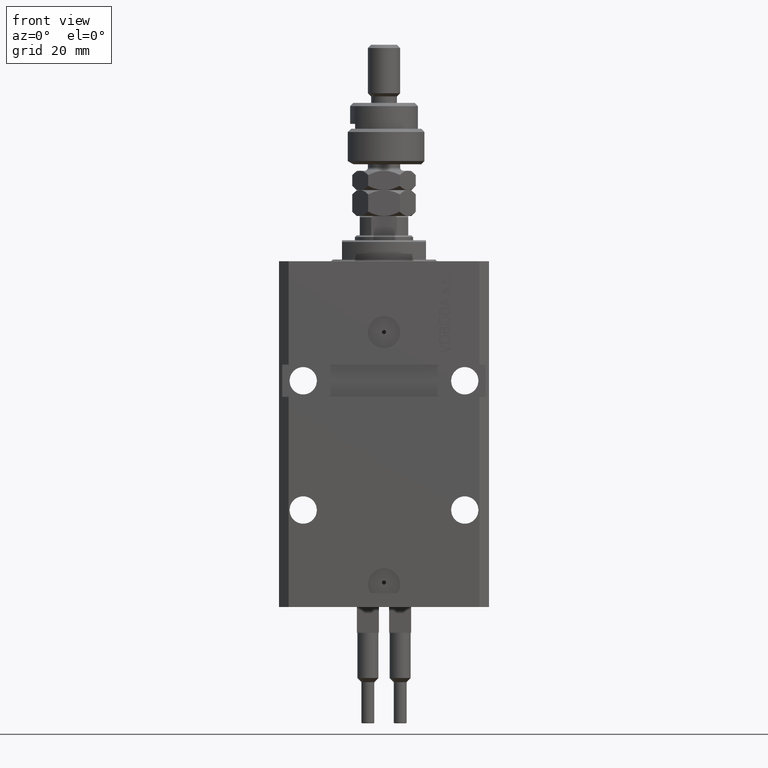
[diagram: clean part render]
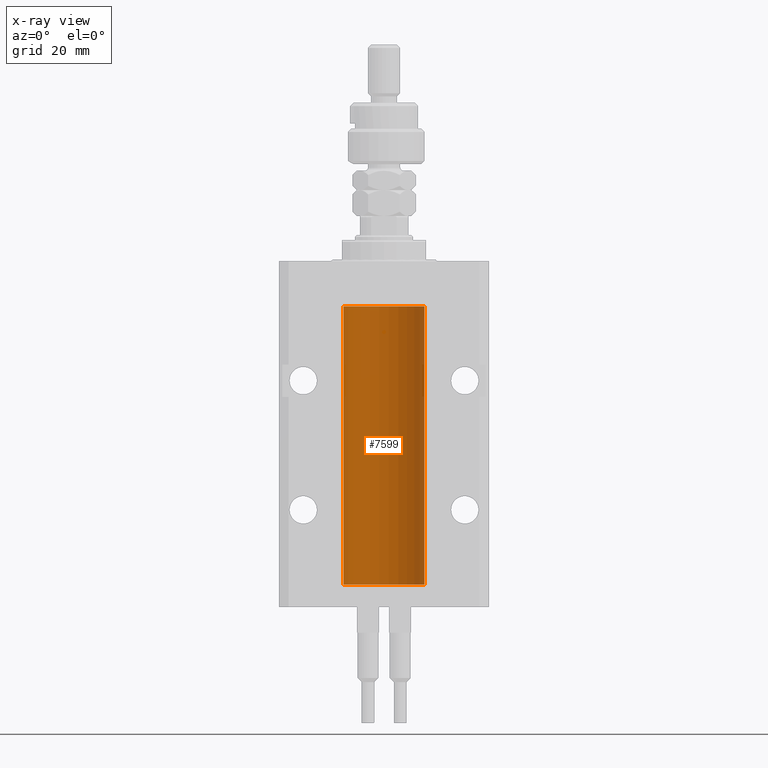
[diagram: x-ray — body ghosted, one internal face saturated and labeled with its STEP entity id]
A machine part, front view, then the same camera in x-ray: the body is ghosted and one INTERNAL B-rep face — a face not visible from any outside direction — is saturated and labeled: STEP entity #7599.
In plain terms, the highlighted cylindrical surface (partial cylindrical patch) has radius 12.5 mm, axis along (0, 0, 1).
Its self-contained STEP definition (entity closure, byte-faithful):
#908 = CARTESIAN_POINT ( 'NONE',  ( 12.48810305280568222, 0.5461368461738485003, -94.68525466142676805 ) ) ;
#1332 = CARTESIAN_POINT ( 'NONE',  ( 12.50000000000000000, 0.000000000000000000, -100.0999999999999943 ) ) ;
#1795 = VERTEX_POINT ( 'NONE', #12191 ) ;
#1808 = CARTESIAN_POINT ( 'NONE',  ( 12.49625698805480667, 0.3151108292486967666, -22.54593695688170385 ) ) ;
#1812 = VERTEX_POINT ( 'NONE', #51411 ) ;
#4069 = EDGE_CURVE ( 'NONE', #26131, #13361, #44828, .T. ) ;
#5304 = CARTESIAN_POINT ( 'NONE',  ( 12.48436522214846711, 0.6250000000078848039, -94.99999999999923261 ) ) ;
#5814 = CARTESIAN_POINT ( 'NONE',  ( 12.50000000000000000, 0.000000000000000000, -100.0999999999999943 ) ) ;
#5827 = CARTESIAN_POINT ( 'NONE',  ( 12.48520578595314845, 0.6087855079133740466, -94.83656717509346379 ) ) ;
#5999 = CARTESIAN_POINT ( 'NONE',  ( 12.50000000000000000, 0.000000000000000000, -100.0999999999999943 ) ) ;
#6095 = ORIENTED_EDGE ( 'NONE', *, *, #10388, .F. ) ;
#6205 = CARTESIAN_POINT ( 'NONE',  ( 12.49915742890631876, 0.1636982395582437522, -22.60872397847025539 ) ) ;
#6868 = CARTESIAN_POINT ( 'NONE',  ( 0.000000000000000000, 0.000000000000000000, -100.0999999999999943 ) ) ;
#6883 = ORIENTED_EDGE ( 'NONE', *, *, #37678, .T. ) ;
#7599 = ADVANCED_FACE ( 'NONE', ( #10473 ), #9456, .F. ) ;
#7913 = ORIENTED_EDGE ( 'NONE', *, *, #41680, .T. ) ;
#7996 = CARTESIAN_POINT ( 'NONE',  ( 12.49012055744648997, 0.5002956126655976332, -21.61641710202404454 ) ) ;
#8279 = CARTESIAN_POINT ( 'NONE',  ( 12.49625698805481022, 0.3151108292486944906, -95.54593695688171806 ) ) ;
#9456 = CYLINDRICAL_SURFACE ( 'NONE', #28266, 12.50000000000000000 ) ;
#9467 = ORIENTED_EDGE ( 'NONE', *, *, #35169, .T. ) ;
#10052 = CARTESIAN_POINT ( 'NONE',  ( 12.50000000000017941, 3.868073689162038701E-13, -94.37499999999640465 ) ) ;
#10336 = DIRECTION ( 'NONE',  ( 0.000000000000000000, 0.000000000000000000, 1.000000000000000000 ) ) ;
#10388 = EDGE_CURVE ( 'NONE', #29681, #26131, #11815, .T. ) ;
#10473 = FACE_OUTER_BOUND ( 'NONE', #16449, .T. ) ;
#10507 = DIRECTION ( 'NONE',  ( 0.000000000000000000, 0.000000000000000000, 1.000000000000000000 ) ) ;
#11282 = CARTESIAN_POINT ( 'NONE',  ( 12.48436522214846889, 0.6250000000078781426, -21.99999999999923261 ) ) ;
#11815 = CIRCLE ( 'NONE', #20831, 12.50000000000000000 ) ;
#12191 = CARTESIAN_POINT ( 'NONE',  ( 12.48436522214846711, 0.6250000000078848039, -94.99999999999923261 ) ) ;
#12360 = CARTESIAN_POINT ( 'NONE',  ( -12.50000000000000000, 1.530808498934191521E-15, -100.0999999999999943 ) ) ;
#13361 = VERTEX_POINT ( 'NONE', #35385 ) ;
#14259 = EDGE_CURVE ( 'NONE', #35543, #45803, #25209, .T. ) ;
#14291 = CARTESIAN_POINT ( 'NONE',  ( 12.50000000000000000, 0.000000000000000000, -100.0999999999999943 ) ) ;
#14445 = VERTEX_POINT ( 'NONE', #30648 ) ;
#14567 = AXIS2_PLACEMENT_3D ( 'NONE', #18905, #10336, #17875 ) ;
#15284 = ORIENTED_EDGE ( 'NONE', *, *, #14259, .T. ) ;
#15534 = CARTESIAN_POINT ( 'NONE',  ( 12.48810305280568222, 0.5461368461738448365, -21.68525466142676805 ) ) ;
#16449 = EDGE_LOOP ( 'NONE', ( #50500, #6095, #27446, #42482, #24620, #15284, #9467, #7913, #39614, #6883 ) ) ;
#16842 = CARTESIAN_POINT ( 'NONE',  ( 12.49915742890631876, 0.1636982395582385896, -95.60872397847028026 ) ) ;
#17875 = DIRECTION ( 'NONE',  ( 1.000000000000000000, 0.000000000000000000, 0.000000000000000000 ) ) ;
#17892 = CARTESIAN_POINT ( 'NONE',  ( 12.48809900631782099, 0.5573988467445639694, -22.32640147935474317 ) ) ;
#18060 = CARTESIAN_POINT ( 'NONE',  ( 12.50000000000000000, 0.000000000000000000, -13.99999999999999822 ) ) ;
#18214 = VECTOR ( 'NONE', #45982, 1000.000000000000000 ) ;
#18753 = EDGE_CURVE ( 'NONE', #14445, #1795, #50983, .T. ) ;
#18905 = CARTESIAN_POINT ( 'NONE',  ( 0.000000000000000000, 0.000000000000000000, -13.99999999999999822 ) ) ;
#20831 = AXIS2_PLACEMENT_3D ( 'NONE', #6868, #10507, #37816 ) ;
#21141 = CARTESIAN_POINT ( 'NONE',  ( 12.49999999999999822, 0.1631389616600901760, -94.37500000000024158 ) ) ;
#21174 = VECTOR ( 'NONE', #29370, 1000.000000000000000 ) ;
#21661 = CARTESIAN_POINT ( 'NONE',  ( 12.49631206032076136, 0.3252904079142934779, -94.44139700214928723 ) ) ;
#22046 = CARTESIAN_POINT ( 'NONE',  ( 12.49421963472024366, 0.3844519291903583103, -22.49947303647044805 ) ) ;
#22113 = CARTESIAN_POINT ( 'NONE',  ( -12.50000000000000000, 1.530808498934191521E-15, -100.0999999999999943 ) ) ;
#24620 = ORIENTED_EDGE ( 'NONE', *, *, #40161, .T. ) ;
#24622 = CARTESIAN_POINT ( 'NONE',  ( 12.50000000000000000, -1.836039810331332019E-15, -95.62500000000000000 ) ) ;
#25209 = LINE ( 'NONE', #1332, #21174 ) ;
#25322 = VECTOR ( 'NONE', #48934, 1000.000000000000000 ) ;
#26131 = VERTEX_POINT ( 'NONE', #22113 ) ;
#26427 = VECTOR ( 'NONE', #40172, 1000.000000000000000 ) ;
#27446 = ORIENTED_EDGE ( 'NONE', *, *, #48227, .T. ) ;
#28021 = CARTESIAN_POINT ( 'NONE',  ( 12.48436522214885969, 0.6250000000001505462, -95.16312747540308692 ) ) ;
#28266 = AXIS2_PLACEMENT_3D ( 'NONE', #41170, #37783, #33626 ) ;
#29195 = CARTESIAN_POINT ( 'NONE',  ( 12.49012055744648997, 0.5002956126656082914, -94.61641710202405875 ) ) ;
#29370 = DIRECTION ( 'NONE',  ( -0.000000000000000000, -0.000000000000000000, 1.000000000000000000 ) ) ;
#29430 = LINE ( 'NONE', #5814, #25322 ) ;
#29681 = VERTEX_POINT ( 'NONE', #5999 ) ;
#29861 = CARTESIAN_POINT ( 'NONE',  ( 12.50000000000000000, -1.470318446642941360E-15, -22.62500000000000000 ) ) ;
#30648 = CARTESIAN_POINT ( 'NONE',  ( 12.50000000000000000, -1.836039810331332019E-15, -95.62500000000000000 ) ) ;
#31300 = CARTESIAN_POINT ( 'NONE',  ( 12.50000000000000000, -1.470318446642941360E-15, -22.62500000000000000 ) ) ;
#32446 = CARTESIAN_POINT ( 'NONE',  ( 12.48809900631782099, 0.5573988467445673001, -95.32640147935475738 ) ) ;
#33503 = CARTESIAN_POINT ( 'NONE',  ( 12.48436522214885969, 0.6250000000001448841, -22.16312747540307271 ) ) ;
#33626 = DIRECTION ( 'NONE',  ( 1.000000000000000000, 0.000000000000000000, 0.000000000000000000 ) ) ;
#35169 = EDGE_CURVE ( 'NONE', #45803, #45085, #45455, .T. ) ;
#35385 = CARTESIAN_POINT ( 'NONE',  ( -12.50000000000000000, 1.530808498934191521E-15, -13.99999999999999822 ) ) ;
#35543 = VERTEX_POINT ( 'NONE', #10052 ) ;
#35556 = CARTESIAN_POINT ( 'NONE',  ( 12.48520578595314845, 0.6087855079133684955, -21.83656717509346024 ) ) ;
#36069 = CARTESIAN_POINT ( 'NONE',  ( 12.49999999999999112, 0.1631389616600879555, -21.37500000000019185 ) ) ;
#36192 = CIRCLE ( 'NONE', #14567, 12.50000000000000000 ) ;
#36221 = EDGE_CURVE ( 'NONE', #1812, #44872, #29430, .T. ) ;
#36609 = CARTESIAN_POINT ( 'NONE',  ( 12.49421963472024721, 0.3844519291903572555, -95.49947303647047647 ) ) ;
#36927 = B_SPLINE_CURVE_WITH_KNOTS ( 'NONE', 3,
 ( #51127, #43087, #35556, #15534, #7996, #39718, #36069, #51387 ),
 .UNSPECIFIED., .F., .F.,
 ( 4, 2, 2, 4 ),
 ( 0.0009773924225142506875, 0.001221629287363794770, 0.001465866152213338852, 0.001954339881912434389 ),
 .UNSPECIFIED. ) ;
#37678 = EDGE_CURVE ( 'NONE', #44872, #13361, #36192, .T. ) ;
#37783 = DIRECTION ( 'NONE',  ( -0.000000000000000000, -0.000000000000000000, 1.000000000000000000 ) ) ;
#37816 = DIRECTION ( 'NONE',  ( 1.000000000000000000, 0.000000000000000000, 0.000000000000000000 ) ) ;
#39614 = ORIENTED_EDGE ( 'NONE', *, *, #36221, .T. ) ;
#39718 = CARTESIAN_POINT ( 'NONE',  ( 12.49631206032075958, 0.3252904079142808214, -21.44139700214925526 ) ) ;
#39734 = CARTESIAN_POINT ( 'NONE',  ( 12.49999999999999822, 0.08262306818362624705, -95.62499999999998579 ) ) ;
#40161 = EDGE_CURVE ( 'NONE', #1795, #35543, #45775, .T. ) ;
#40172 = DIRECTION ( 'NONE',  ( -0.000000000000000000, -0.000000000000000000, 1.000000000000000000 ) ) ;
#41170 = CARTESIAN_POINT ( 'NONE',  ( 0.000000000000000000, 0.000000000000000000, -100.0999999999999943 ) ) ;
#41421 = CARTESIAN_POINT ( 'NONE',  ( 12.48436522214888100, 0.6249999999996834754, -94.91847339462351840 ) ) ;
#41569 = CARTESIAN_POINT ( 'NONE',  ( 12.49999999999999822, 0.08262306818362555316, -22.62499999999997513 ) ) ;
#41680 = EDGE_CURVE ( 'NONE', #45085, #1812, #36927, .T. ) ;
#42482 = ORIENTED_EDGE ( 'NONE', *, *, #18753, .T. ) ;
#43087 = CARTESIAN_POINT ( 'NONE',  ( 12.48436522214888100, 0.6249999999996762590, -21.91847339462350774 ) ) ;
#44541 = CARTESIAN_POINT ( 'NONE',  ( 12.50000000000017941, 3.868073689162038701E-13, -94.37499999999640465 ) ) ;
#44828 = LINE ( 'NONE', #12360, #26427 ) ;
#44872 = VERTEX_POINT ( 'NONE', #18060 ) ;
#45085 = VERTEX_POINT ( 'NONE', #11282 ) ;
#45455 = B_SPLINE_CURVE_WITH_KNOTS ( 'NONE', 3,
 ( #29861, #41569, #6205, #1808, #22046, #17892, #33503, #49851 ),
 .UNSPECIFIED., .F., .F.,
 ( 4, 2, 2, 4 ),
 ( 2.576359803311334014E-18, 0.0002443481056285645150, 0.0004886962112571264279, 0.0009773924225142506875 ),
 .UNSPECIFIED. ) ;
#45775 = B_SPLINE_CURVE_WITH_KNOTS ( 'NONE', 3,
 ( #5304, #41421, #5827, #908, #29195, #21661, #21141, #44541 ),
 .UNSPECIFIED., .F., .F.,
 ( 4, 2, 2, 4 ),
 ( 0.0009773924225142606621, 0.001221629287363811033, 0.001465866152213361404, 0.001954339881912461711 ),
 .UNSPECIFIED. ) ;
#45803 = VERTEX_POINT ( 'NONE', #31300 ) ;
#45982 = DIRECTION ( 'NONE',  ( -0.000000000000000000, -0.000000000000000000, 1.000000000000000000 ) ) ;
#48227 = EDGE_CURVE ( 'NONE', #29681, #14445, #49885, .T. ) ;
#48527 = CARTESIAN_POINT ( 'NONE',  ( 12.48436522214846711, 0.6250000000078848039, -94.99999999999923261 ) ) ;
#48934 = DIRECTION ( 'NONE',  ( -0.000000000000000000, -0.000000000000000000, 1.000000000000000000 ) ) ;
#49851 = CARTESIAN_POINT ( 'NONE',  ( 12.48436522214846889, 0.6250000000078781426, -21.99999999999923261 ) ) ;
#49885 = LINE ( 'NONE', #14291, #18214 ) ;
#50500 = ORIENTED_EDGE ( 'NONE', *, *, #4069, .F. ) ;
#50983 = B_SPLINE_CURVE_WITH_KNOTS ( 'NONE', 3,
 ( #24622, #39734, #16842, #8279, #36609, #32446, #28021, #48527 ),
 .UNSPECIFIED., .F., .F.,
 ( 4, 2, 2, 4 ),
 ( 1.784246692340212412E-18, 0.0002443481056285665750, 0.0004886962112571313068, 0.0009773924225142606621 ),
 .UNSPECIFIED. ) ;
#51127 = CARTESIAN_POINT ( 'NONE',  ( 12.48436522214846889, 0.6250000000078781426, -21.99999999999923261 ) ) ;
#51387 = CARTESIAN_POINT ( 'NONE',  ( 12.50000000000017941, 3.868073565084946818E-13, -21.37499999999641176 ) ) ;
#51411 = CARTESIAN_POINT ( 'NONE',  ( 12.50000000000017941, 3.868073565084946818E-13, -21.37499999999641176 ) ) ;